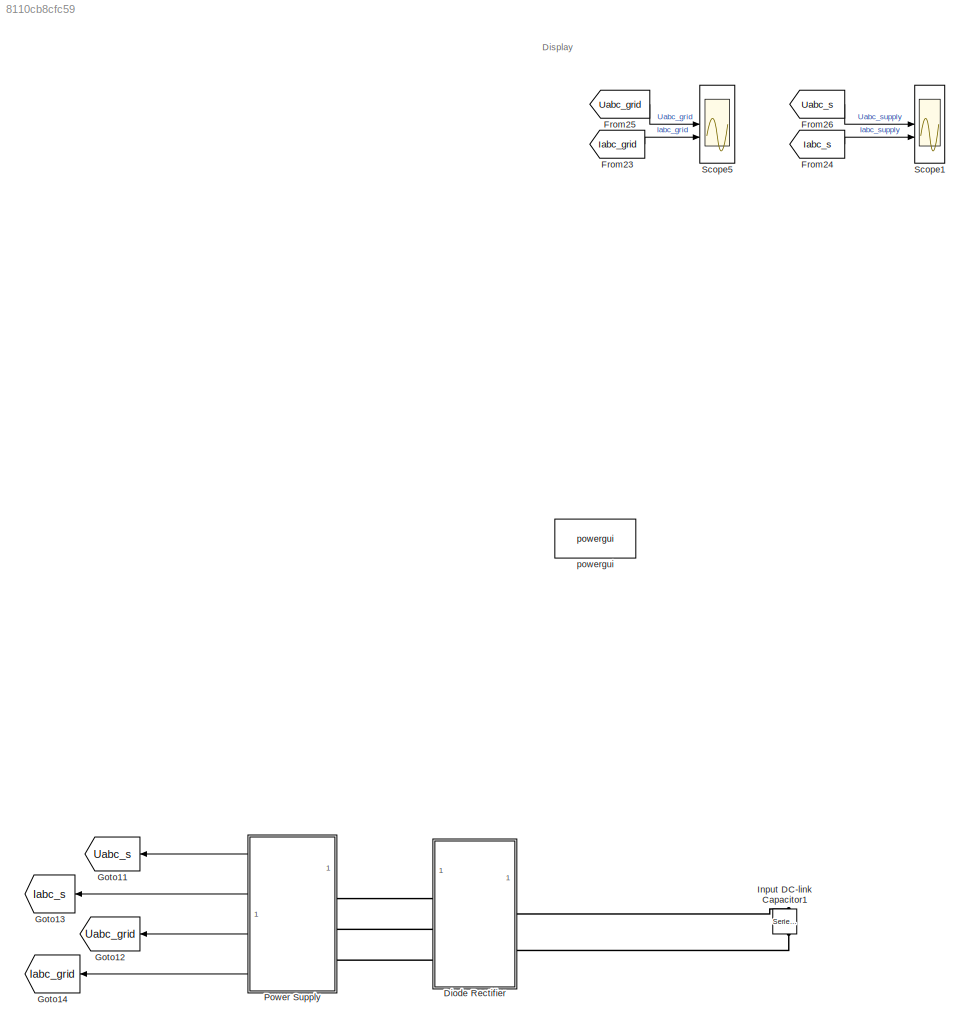
MODEL slx_8110cb8cfc59
KIND model
CONFIG AbsTol = auto
CONFIG EnableMultiTasking = off
CONFIG FixedStep = auto
CONFIG MaxStep = auto
CONFIG MinStep = auto
CONFIG RelTol = 1e-3
CONFIG SampleTimeConstraint = Unconstrained
CONFIG SolverName = VariableStepAuto
CONFIG StartTime = 0.0
CONFIG StopTime = 0.1
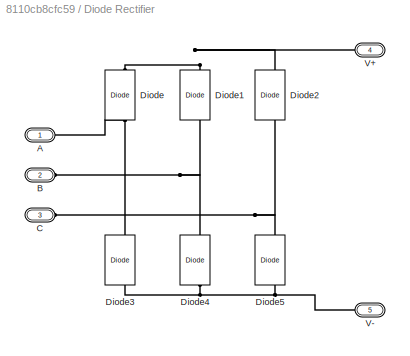
BLOCK [SubSystem] Diode Rectifier
BLOCK [PMIOPort] Diode Rectifier/A
  Side = Left
BLOCK [PMIOPort] Diode Rectifier/B
  Port = 2
  Side = Left
BLOCK [PMIOPort] Diode Rectifier/C
  Port = 3
  Side = Left
BLOCK [Reference] Diode Rectifier/Diode  REF=spsDiodeLib/Diode
  LibrarySourceBlock = sps_lib/Power Electronics/Diode
  NameLocation = right
  SourceBlock = spsDiodeLib/Diode
  SourceType = Diode
BLOCK [Reference] Diode Rectifier/Diode1  REF=spsDiodeLib/Diode
  LibrarySourceBlock = sps_lib/Power Electronics/Diode
  NameLocation = right
  SourceBlock = spsDiodeLib/Diode
  SourceType = Diode
BLOCK [Reference] Diode Rectifier/Diode2  REF=spsDiodeLib/Diode
  LibrarySourceBlock = sps_lib/Power Electronics/Diode
  NameLocation = right
  SourceBlock = spsDiodeLib/Diode
  SourceType = Diode
BLOCK [Reference] Diode Rectifier/Diode3  REF=spsDiodeLib/Diode
  LibrarySourceBlock = sps_lib/Power Electronics/Diode
  NameLocation = right
  SourceBlock = spsDiodeLib/Diode
  SourceType = Diode
BLOCK [Reference] Diode Rectifier/Diode4  REF=spsDiodeLib/Diode
  LibrarySourceBlock = sps_lib/Power Electronics/Diode
  NameLocation = right
  SourceBlock = spsDiodeLib/Diode
  SourceType = Diode
BLOCK [Reference] Diode Rectifier/Diode5  REF=spsDiodeLib/Diode
  LibrarySourceBlock = sps_lib/Power Electronics/Diode
  NameLocation = right
  SourceBlock = spsDiodeLib/Diode
  SourceType = Diode
BLOCK [PMIOPort] Diode Rectifier/V+
  Port = 4
  Side = Right
BLOCK [PMIOPort] Diode Rectifier/V-
  Port = 5
  Side = Right
BLOCK [From] From23
  GotoTag = Iabc_grid
BLOCK [From] From24
  GotoTag = Iabc_s
BLOCK [From] From25
  GotoTag = Uabc_grid
BLOCK [From] From26
  GotoTag = Uabc_s
BLOCK [Goto] Goto11
  GotoTag = Uabc_s
  NameLocation = top
BLOCK [Goto] Goto12
  GotoTag = Uabc_grid
  NameLocation = top
BLOCK [Goto] Goto13
  GotoTag = Iabc_s
  NameLocation = top
BLOCK [Goto] Goto14
  GotoTag = Iabc_grid
  NameLocation = top
BLOCK [Reference] Input DC-link Capacitor1  REF=spsSeriesRLCBranchLib/Series RLC Branch
  LibrarySourceBlock = sps_lib/Passives/Series RLC Branch
  NameLocation = left
  SourceBlock = spsSeriesRLCBranchLib/Series RLC Branch
  SourceType = Series RLC Branch
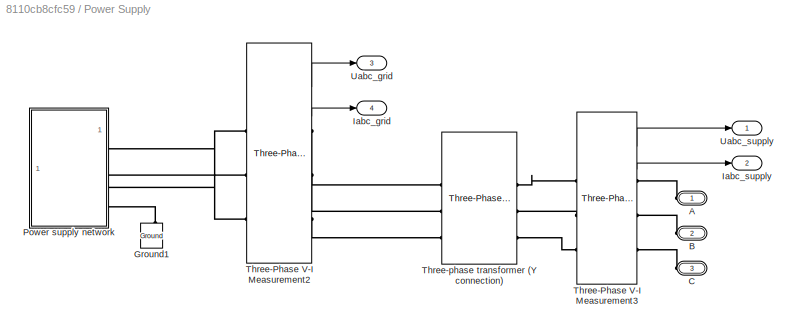
BLOCK [SubSystem] Power Supply
BLOCK [PMIOPort] Power Supply/A
  Side = Left
BLOCK [PMIOPort] Power Supply/B
  Port = 2
  Side = Left
BLOCK [PMIOPort] Power Supply/C
  Port = 3
  Side = Left
BLOCK [Reference] Power Supply/Ground1  REF=spsGroundLib/Ground
  LibrarySourceBlock = sps_lib/Utilities/Ground
  NameLocation = right
  SourceBlock = spsGroundLib/Ground
  SourceType = Ground
BLOCK [Outport] Power Supply/Iabc_grid
  Port = 4
  VectorParamsAs1DForOutWhenUnconnected = off
BLOCK [Outport] Power Supply/Iabc_supply
  Port = 2
  VectorParamsAs1DForOutWhenUnconnected = off
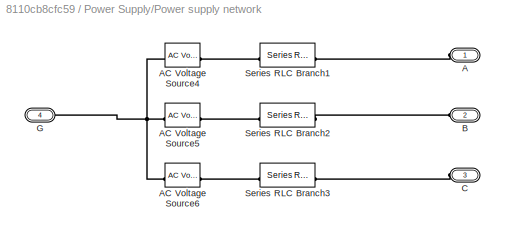
BLOCK [SubSystem] Power Supply/Power supply network
  NameLocation = top
BLOCK [PMIOPort] Power Supply/Power supply network/A
  Side = Left
BLOCK [Reference] Power Supply/Power supply network/AC Voltage Source4  REF=spsACVoltageSourceLib/AC Voltage Source
  LibrarySourceBlock = sps_lib/Sources/AC Voltage Source
  NameLocation = left
  SourceBlock = spsACVoltageSourceLib/AC Voltage Source
  SourceType = AC Voltage Source
BLOCK [Reference] Power Supply/Power supply network/AC Voltage Source5  REF=spsACVoltageSourceLib/AC Voltage Source
  LibrarySourceBlock = sps_lib/Sources/AC Voltage Source
  NameLocation = left
  SourceBlock = spsACVoltageSourceLib/AC Voltage Source
  SourceType = AC Voltage Source
BLOCK [Reference] Power Supply/Power supply network/AC Voltage Source6  REF=spsACVoltageSourceLib/AC Voltage Source
  LibrarySourceBlock = sps_lib/Sources/AC Voltage Source
  NameLocation = left
  SourceBlock = spsACVoltageSourceLib/AC Voltage Source
  SourceType = AC Voltage Source
BLOCK [PMIOPort] Power Supply/Power supply network/B
  Port = 2
  Side = Left
BLOCK [PMIOPort] Power Supply/Power supply network/C
  Port = 3
  Side = Left
BLOCK [PMIOPort] Power Supply/Power supply network/G
  Port = 4
  Side = Left
BLOCK [Reference] Power Supply/Power supply network/Series RLC Branch1  REF=spsSeriesRLCBranchLib/Series RLC Branch
  LibrarySourceBlock = sps_lib/Passives/Series RLC Branch
  NameLocation = top
  SourceBlock = spsSeriesRLCBranchLib/Series RLC Branch
  SourceType = Series RLC Branch
BLOCK [Reference] Power Supply/Power supply network/Series RLC Branch2  REF=spsSeriesRLCBranchLib/Series RLC Branch
  LibrarySourceBlock = sps_lib/Passives/Series RLC Branch
  NameLocation = top
  SourceBlock = spsSeriesRLCBranchLib/Series RLC Branch
  SourceType = Series RLC Branch
BLOCK [Reference] Power Supply/Power supply network/Series RLC Branch3  REF=spsSeriesRLCBranchLib/Series RLC Branch
  LibrarySourceBlock = sps_lib/Passives/Series RLC Branch
  NameLocation = top
  SourceBlock = spsSeriesRLCBranchLib/Series RLC Branch
  SourceType = Series RLC Branch
BLOCK [Reference] Power Supply/Three-Phase V-I Measurement2  REF=spsThreePhaseVIMeasurementLib/Three-Phase
V-I Measurement
  LibrarySourceBlock = sps_lib/Sensors and Measurements/Three-Phase\nV-I Measurement
  SourceBlock = spsThreePhaseVIMeasurementLib/Three-Phase\nV-I Measurement
  SourceType = Three-Phase VI Measurement
BLOCK [Reference] Power Supply/Three-Phase V-I Measurement3  REF=spsThreePhaseVIMeasurementLib/Three-Phase
V-I Measurement
  LibrarySourceBlock = sps_lib/Sensors and Measurements/Three-Phase\nV-I Measurement
  SourceBlock = spsThreePhaseVIMeasurementLib/Three-Phase\nV-I Measurement
  SourceType = Three-Phase VI Measurement
BLOCK [Reference] Power Supply/Three-phase transformer (Y connection)  REF=spsThreePhaseTransformerTwoWindingsLib/Three-Phase
Transformer
(Two Windings)
  LibrarySourceBlock = sps_lib/Power Grid Elements/Three-Phase\nTransformer\n(Two Windings)
  SourceBlock = spsThreePhaseTransformerTwoWindingsLib/Three-Phase\nTransformer\n(Two Windings)
  SourceType = Three-Phase Transformer (Two Windings)
BLOCK [Outport] Power Supply/Uabc_grid
  NameLocation = top
  Port = 3
  VectorParamsAs1DForOutWhenUnconnected = off
BLOCK [Outport] Power Supply/Uabc_supply
  NameLocation = top
  VectorParamsAs1DForOutWhenUnconnected = off
BLOCK [Scope] Scope1
  Floating = off
  NumInputPorts = 2
  ScopeSpecificationString = Simulink.scopes.TimeScopeBlockCfg('CurrentConfiguration', extmgr.ConfigurationSet(extmgr.Configuration('Core','General UI',true,'FigureColor',[1 1 1]),extmgr.Configuration('Core','Source UI',true),extmgr.Configuration('Sources','WiredSimulink',true,'DataLoggingVariableName','ScopeData1','DataLogging',true,'DataLoggingSaveFormat','StructureWithTime'),extmgr.Configuration('Visuals','Time Domain',tru...<+4062ch>
BLOCK [Scope] Scope5
  Floating = off
  NumInputPorts = 2
  ScopeSpecificationString = Simulink.scopes.TimeScopeBlockCfg('CurrentConfiguration', extmgr.ConfigurationSet(extmgr.Configuration('Core','General UI',true,'FigureColor',[1 1 1]),extmgr.Configuration('Core','Source UI',true),extmgr.Configuration('Sources','WiredSimulink',true,'DataLoggingVariableName','ScopeData4','DataLogging',true,'DataLoggingSaveFormat','StructureWithTime'),extmgr.Configuration('Visuals','Time Domain',tru...<+4070ch>
BLOCK [Reference] powergui  REF=sps_lib/powergui
  LibrarySourceBlock = sps_lib/powergui
  Priority = 1
  SourceBlock = sps_lib/powergui
  SourceType = PSB option menu block
ANNOTATION (root): Display
LINE From23:1 -> Scope5:2
LINE From24:1 -> Scope1:2
LINE From25:1 -> Scope5:1
LINE From26:1 -> Scope1:1
LINE Power Supply/Three-Phase V-I Measurement2:1 -> Power Supply/Uabc_grid:1
LINE Power Supply/Three-Phase V-I Measurement2:2 -> Power Supply/Iabc_grid:1
LINE Power Supply/Three-Phase V-I Measurement3:1 -> Power Supply/Uabc_supply:1
LINE Power Supply/Three-Phase V-I Measurement3:2 -> Power Supply/Iabc_supply:1
LINE Power Supply:1 -> Goto11:1
LINE Power Supply:2 -> Goto13:1
LINE Power Supply:3 -> Goto12:1
LINE Power Supply:4 -> Goto14:1
PNET net1: Diode Rectifier/A:RConn1 -- Diode Rectifier/Diode3:RConn1 -- Diode Rectifier/Diode:LConn1
PNET net2: Diode Rectifier/B:RConn1 -- Diode Rectifier/Diode1:LConn1 -- Diode Rectifier/Diode4:RConn1
PNET net3: Diode Rectifier/C:RConn1 -- Diode Rectifier/Diode2:LConn1 -- Diode Rectifier/Diode5:RConn1
PNET net4: Diode Rectifier/Diode1:RConn1 -- Diode Rectifier/Diode2:RConn1 -- Diode Rectifier/Diode:RConn1 -- Diode Rectifier/V+:RConn1
PNET net5: Diode Rectifier/Diode3:LConn1 -- Diode Rectifier/Diode4:LConn1 -- Diode Rectifier/Diode5:LConn1 -- Diode Rectifier/V-:RConn1
PLINE Diode Rectifier:LConn1 -- Power Supply:LConn1
PLINE Diode Rectifier:LConn2 -- Power Supply:LConn2
PLINE Diode Rectifier:LConn3 -- Power Supply:LConn3
PLINE Diode Rectifier:RConn1 -- Input DC-link Capacitor1:LConn1
PLINE Diode Rectifier:RConn2 -- Input DC-link Capacitor1:RConn1
PLINE Power Supply/A:RConn1 -- Power Supply/Three-Phase V-I Measurement3:RConn1
PLINE Power Supply/B:RConn1 -- Power Supply/Three-Phase V-I Measurement3:RConn2
PLINE Power Supply/C:RConn1 -- Power Supply/Three-Phase V-I Measurement3:RConn3
PLINE Power Supply/Ground1:LConn1 -- Power Supply/Power supply network:LConn4
PLINE Power Supply/Power supply network/A:RConn1 -- Power Supply/Power supply network/Series RLC Branch1:LConn1
PNET net6: Power Supply/Power supply network/AC Voltage Source4:LConn1 -- Power Supply/Power supply network/AC Voltage Source5:LConn1 -- Power Supply/Power supply network/AC Voltage Source6:LConn1 -- Power Supply/Power supply network/G:RConn1
PLINE Power Supply/Power supply network/AC Voltage Source4:RConn1 -- Power Supply/Power supply network/Series RLC Branch1:RConn1
PLINE Power Supply/Power supply network/AC Voltage Source5:RConn1 -- Power Supply/Power supply network/Series RLC Branch2:RConn1
PLINE Power Supply/Power supply network/AC Voltage Source6:RConn1 -- Power Supply/Power supply network/Series RLC Branch3:RConn1
PLINE Power Supply/Power supply network/B:RConn1 -- Power Supply/Power supply network/Series RLC Branch2:LConn1
PLINE Power Supply/Power supply network/C:RConn1 -- Power Supply/Power supply network/Series RLC Branch3:LConn1
PLINE Power Supply/Power supply network:LConn1 -- Power Supply/Three-Phase V-I Measurement2:LConn1
PLINE Power Supply/Power supply network:LConn2 -- Power Supply/Three-Phase V-I Measurement2:LConn2
PLINE Power Supply/Power supply network:LConn3 -- Power Supply/Three-Phase V-I Measurement2:LConn3
PLINE Power Supply/Three-Phase V-I Measurement2:RConn1 -- Power Supply/Three-phase transformer (Y connection):LConn1
PLINE Power Supply/Three-Phase V-I Measurement2:RConn2 -- Power Supply/Three-phase transformer (Y connection):LConn2
PLINE Power Supply/Three-Phase V-I Measurement2:RConn3 -- Power Supply/Three-phase transformer (Y connection):LConn3
PLINE Power Supply/Three-Phase V-I Measurement3:LConn1 -- Power Supply/Three-phase transformer (Y connection):RConn1
PLINE Power Supply/Three-Phase V-I Measurement3:LConn2 -- Power Supply/Three-phase transformer (Y connection):RConn2
PLINE Power Supply/Three-Phase V-I Measurement3:LConn3 -- Power Supply/Three-phase transformer (Y connection):RConn3
note: PNET lines group multi-terminal physical nets as a canonical sorted terminal list (undirected conserving connections); 2-terminal nets keep the pairwise PLINE form
